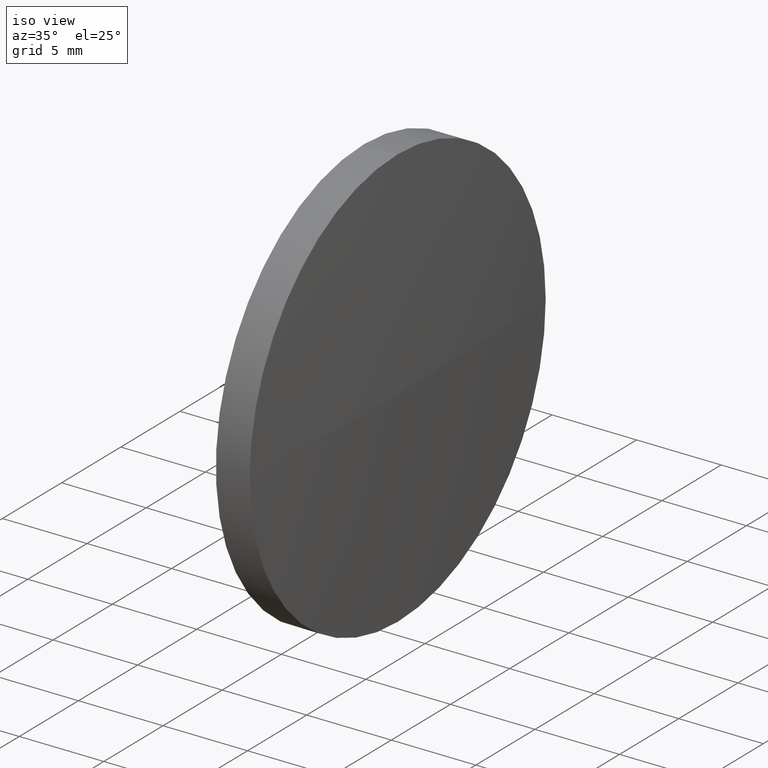
[diagram: clean part render]
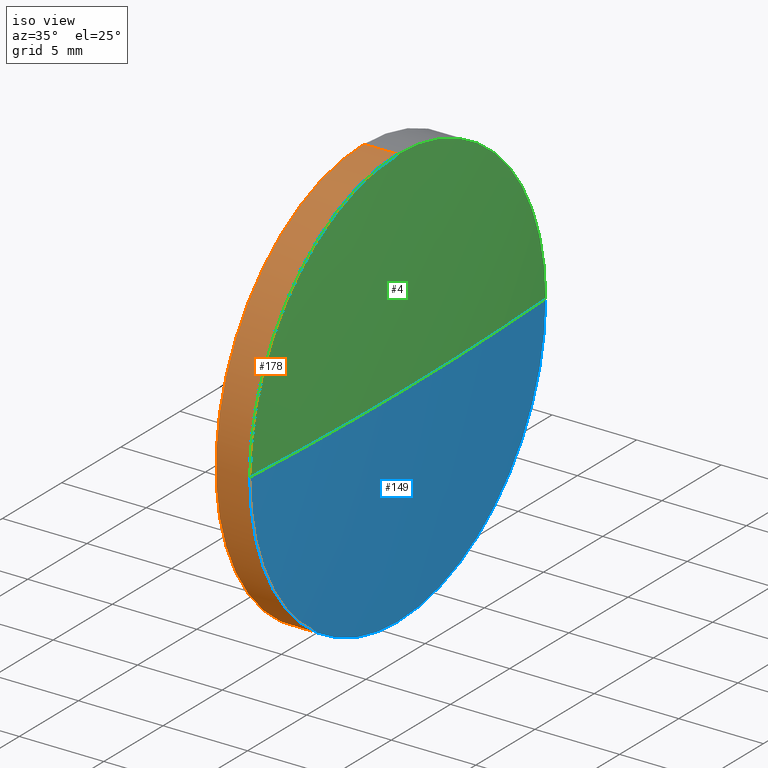
[diagram: same view with three faces highlighted in distinct colors, each labeled with its STEP entity id]
A machine part, iso view with three faces highlighted in distinct colors.
Their STEP definitions:

[orange] entity #178 — the highlighted cylindrical surface (partial cylindrical patch) has radius 12.5 mm, axis along (-1, -0, -0).
#8 = CARTESIAN_POINT ( 'NONE',  ( 498.1420614191210300, 132.8379031391614300, 0.0000000000000000000 ) ) ;
#10 = CARTESIAN_POINT ( 'NONE',  ( 498.1420614191210300, 145.3379031391612800, 12.50000000000001100 ) ) ;
#12 = VERTEX_POINT ( 'NONE', #8 ) ;
#16 = EDGE_CURVE ( 'NONE', #163, #184, #170, .T. ) ;
#22 = CARTESIAN_POINT ( 'NONE',  ( 496.1420614191210300, 145.3379031391612800, 0.0000000000000000000 ) ) ;
#24 = CARTESIAN_POINT ( 'NONE',  ( 496.1420614191210300, 145.3379031391612800, 12.50000000000001100 ) ) ;
#27 = FACE_OUTER_BOUND ( 'NONE', #156, .T. ) ;
#29 = EDGE_CURVE ( 'NONE', #35, #163, #166, .T. ) ;
#34 = CARTESIAN_POINT ( 'NONE',  ( 498.1420614191210300, 145.3379031391612800, 0.0000000000000000000 ) ) ;
#35 = VERTEX_POINT ( 'NONE', #141 ) ;
#39 = ORIENTED_EDGE ( 'NONE', *, *, #181, .T. ) ;
#41 = DIRECTION ( 'NONE',  ( 0.0000000000000000000, 0.0000000000000000000, 1.000000000000000000 ) ) ;
#42 = AXIS2_PLACEMENT_3D ( 'NONE', #177, #82, #145 ) ;
#49 = AXIS2_PLACEMENT_3D ( 'NONE', #22, #127, #53 ) ;
#53 = DIRECTION ( 'NONE',  ( 0.0000000000000000000, 0.0000000000000000000, 1.000000000000000000 ) ) ;
#55 = DIRECTION ( 'NONE',  ( 0.0000000000000000000, 0.0000000000000000000, 1.000000000000000000 ) ) ;
#56 = DIRECTION ( 'NONE',  ( -1.000000000000000000, -0.0000000000000000000, -0.0000000000000000000 ) ) ;
#60 = CIRCLE ( 'NONE', #91, 12.50000000000001100 ) ;
#62 = LINE ( 'NONE', #162, #132 ) ;
#65 = VERTEX_POINT ( 'NONE', #10 ) ;
#67 = CARTESIAN_POINT ( 'NONE',  ( 491.4000301772311400, 145.3379031391612800, 0.0000000000000000000 ) ) ;
#82 = DIRECTION ( 'NONE',  ( -1.000000000000000000, -0.0000000000000000000, -0.0000000000000000000 ) ) ;
#85 = DIRECTION ( 'NONE',  ( -1.000000000000000000, -0.0000000000000000000, -0.0000000000000000000 ) ) ;
#91 = AXIS2_PLACEMENT_3D ( 'NONE', #34, #56, #55 ) ;
#104 = CIRCLE ( 'NONE', #42, 12.50000000000001100 ) ;
#105 = CYLINDRICAL_SURFACE ( 'NONE', #154, 12.50000000000001100 ) ;
#109 = DIRECTION ( 'NONE',  ( -1.000000000000000000, -0.0000000000000000000, -0.0000000000000000000 ) ) ;
#111 = EDGE_CURVE ( 'NONE', #12, #65, #60, .T. ) ;
#118 = DIRECTION ( 'NONE',  ( -1.000000000000000000, -0.0000000000000000000, -0.0000000000000000000 ) ) ;
#119 = ORIENTED_EDGE ( 'NONE', *, *, #111, .T. ) ;
#125 = CARTESIAN_POINT ( 'NONE',  ( 491.4000301772311400, 145.3379031391612800, -12.50000000000001100 ) ) ;
#127 = DIRECTION ( 'NONE',  ( -1.000000000000000000, -0.0000000000000000000, -0.0000000000000000000 ) ) ;
#132 = VECTOR ( 'NONE', #118, 1000.000000000000000 ) ;
#141 = CARTESIAN_POINT ( 'NONE',  ( 498.1420614191210300, 145.3379031391612800, -12.50000000000001100 ) ) ;
#145 = DIRECTION ( 'NONE',  ( 0.0000000000000000000, 0.0000000000000000000, 1.000000000000000000 ) ) ;
#147 = VECTOR ( 'NONE', #109, 1000.000000000000000 ) ;
#150 = ORIENTED_EDGE ( 'NONE', *, *, #29, .F. ) ;
#154 = AXIS2_PLACEMENT_3D ( 'NONE', #67, #85, #41 ) ;
#156 = EDGE_LOOP ( 'NONE', ( #150, #168, #119, #39, #160 ) ) ;
#160 = ORIENTED_EDGE ( 'NONE', *, *, #16, .F. ) ;
#162 = CARTESIAN_POINT ( 'NONE',  ( 491.4000301772311400, 145.3379031391612800, 12.50000000000001100 ) ) ;
#163 = VERTEX_POINT ( 'NONE', #172 ) ;
#166 = LINE ( 'NONE', #125, #147 ) ;
#168 = ORIENTED_EDGE ( 'NONE', *, *, #173, .T. ) ;
#170 = CIRCLE ( 'NONE', #49, 12.50000000000001100 ) ;
#172 = CARTESIAN_POINT ( 'NONE',  ( 496.1420614191210300, 145.3379031391612800, -12.50000000000001100 ) ) ;
#173 = EDGE_CURVE ( 'NONE', #35, #12, #104, .T. ) ;
#177 = CARTESIAN_POINT ( 'NONE',  ( 498.1420614191210300, 145.3379031391612800, 0.0000000000000000000 ) ) ;
#178 = ADVANCED_FACE ( 'NONE', ( #27 ), #105, .T. ) ;
#181 = EDGE_CURVE ( 'NONE', #65, #184, #62, .T. ) ;
#184 = VERTEX_POINT ( 'NONE', #24 ) ;

[blue] entity #149 — the highlighted spherical surface has radius 205.782 mm.
#7 = ORIENTED_EDGE ( 'NONE', *, *, #93, .F. ) ;
#8 = CARTESIAN_POINT ( 'NONE',  ( 498.1420614191210300, 132.8379031391614300, 0.0000000000000000000 ) ) ;
#12 = VERTEX_POINT ( 'NONE', #8 ) ;
#14 = FACE_OUTER_BOUND ( 'NONE', #43, .T. ) ;
#15 = AXIS2_PLACEMENT_3D ( 'NONE', #171, #183, #21 ) ;
#21 = DIRECTION ( 'NONE',  ( 0.0000000000000000000, 0.0000000000000000000, 1.000000000000000000 ) ) ;
#28 = AXIS2_PLACEMENT_3D ( 'NONE', #97, #52, #37 ) ;
#30 = AXIS2_PLACEMENT_3D ( 'NONE', #155, #79, #137 ) ;
#35 = VERTEX_POINT ( 'NONE', #141 ) ;
#37 = DIRECTION ( 'NONE',  ( -1.000000000000000000, 0.0000000000000000000, 0.0000000000000000000 ) ) ;
#38 = CARTESIAN_POINT ( 'NONE',  ( 292.7399561559625500, 145.3379031391614500, 0.0000000000000000000 ) ) ;
#42 = AXIS2_PLACEMENT_3D ( 'NONE', #177, #82, #145 ) ;
#43 = EDGE_LOOP ( 'NONE', ( #121, #74, #76, #7 ) ) ;
#44 = SPHERICAL_SURFACE ( 'NONE', #69, 205.7821052631584800 ) ;
#52 = DIRECTION ( 'NONE',  ( 0.0000000000000000000, 0.0000000000000000000, -1.000000000000000000 ) ) ;
#54 = CIRCLE ( 'NONE', #15, 12.50000000000001100 ) ;
#66 = DIRECTION ( 'NONE',  ( 0.0000000000000000000, 0.0000000000000000000, 1.000000000000000000 ) ) ;
#69 = AXIS2_PLACEMENT_3D ( 'NONE', #38, #66, #140 ) ;
#74 = ORIENTED_EDGE ( 'NONE', *, *, #86, .T. ) ;
#76 = ORIENTED_EDGE ( 'NONE', *, *, #173, .F. ) ;
#79 = DIRECTION ( 'NONE',  ( 0.0000000000000000000, -1.224646799147353200E-016, 1.000000000000000000 ) ) ;
#82 = DIRECTION ( 'NONE',  ( -1.000000000000000000, -0.0000000000000000000, -0.0000000000000000000 ) ) ;
#86 = EDGE_CURVE ( 'NONE', #115, #12, #120, .T. ) ;
#93 = EDGE_CURVE ( 'NONE', #143, #35, #54, .T. ) ;
#97 = CARTESIAN_POINT ( 'NONE',  ( 292.7399561559625500, 145.3379031391614500, 0.0000000000000000000 ) ) ;
#104 = CIRCLE ( 'NONE', #42, 12.50000000000001100 ) ;
#115 = VERTEX_POINT ( 'NONE', #157 ) ;
#120 = CIRCLE ( 'NONE', #28, 205.7821052631584800 ) ;
#121 = ORIENTED_EDGE ( 'NONE', *, *, #164, .F. ) ;
#137 = DIRECTION ( 'NONE',  ( 0.0000000000000000000, -1.000000000000000000, -1.224646799147353200E-016 ) ) ;
#140 = DIRECTION ( 'NONE',  ( 0.0000000000000000000, -1.000000000000000000, 0.0000000000000000000 ) ) ;
#141 = CARTESIAN_POINT ( 'NONE',  ( 498.1420614191210300, 145.3379031391612800, -12.50000000000001100 ) ) ;
#143 = VERTEX_POINT ( 'NONE', #169 ) ;
#145 = DIRECTION ( 'NONE',  ( 0.0000000000000000000, 0.0000000000000000000, 1.000000000000000000 ) ) ;
#149 = ADVANCED_FACE ( 'NONE', ( #14 ), #44, .T. ) ;
#155 = CARTESIAN_POINT ( 'NONE',  ( 292.7399561559625500, 145.3379031391614500, 0.0000000000000000000 ) ) ;
#157 = CARTESIAN_POINT ( 'NONE',  ( 498.5220614191210300, 145.3379031391614500, 0.0000000000000000000 ) ) ;
#164 = EDGE_CURVE ( 'NONE', #115, #143, #182, .T. ) ;
#169 = CARTESIAN_POINT ( 'NONE',  ( 498.1420614191210300, 157.8379031391612800, 1.530808498934174600E-015 ) ) ;
#171 = CARTESIAN_POINT ( 'NONE',  ( 498.1420614191210300, 145.3379031391612800, 0.0000000000000000000 ) ) ;
#173 = EDGE_CURVE ( 'NONE', #35, #12, #104, .T. ) ;
#177 = CARTESIAN_POINT ( 'NONE',  ( 498.1420614191210300, 145.3379031391612800, 0.0000000000000000000 ) ) ;
#182 = CIRCLE ( 'NONE', #30, 205.7821052631584800 ) ;
#183 = DIRECTION ( 'NONE',  ( -1.000000000000000000, -0.0000000000000000000, -0.0000000000000000000 ) ) ;

[green] entity #4 — the highlighted spherical surface has radius 205.782 mm.
#4 = ADVANCED_FACE ( 'NONE', ( #18 ), #179, .T. ) ;
#8 = CARTESIAN_POINT ( 'NONE',  ( 498.1420614191210300, 132.8379031391614300, 0.0000000000000000000 ) ) ;
#9 = ORIENTED_EDGE ( 'NONE', *, *, #164, .T. ) ;
#10 = CARTESIAN_POINT ( 'NONE',  ( 498.1420614191210300, 145.3379031391612800, 12.50000000000001100 ) ) ;
#12 = VERTEX_POINT ( 'NONE', #8 ) ;
#18 = FACE_OUTER_BOUND ( 'NONE', #165, .T. ) ;
#20 = DIRECTION ( 'NONE',  ( -1.000000000000000000, -0.0000000000000000000, -0.0000000000000000000 ) ) ;
#28 = AXIS2_PLACEMENT_3D ( 'NONE', #97, #52, #37 ) ;
#30 = AXIS2_PLACEMENT_3D ( 'NONE', #155, #79, #137 ) ;
#33 = CARTESIAN_POINT ( 'NONE',  ( 292.7399561559625500, 145.3379031391614500, 0.0000000000000000000 ) ) ;
#34 = CARTESIAN_POINT ( 'NONE',  ( 498.1420614191210300, 145.3379031391612800, 0.0000000000000000000 ) ) ;
#37 = DIRECTION ( 'NONE',  ( -1.000000000000000000, 0.0000000000000000000, 0.0000000000000000000 ) ) ;
#51 = AXIS2_PLACEMENT_3D ( 'NONE', #112, #20, #110 ) ;
#52 = DIRECTION ( 'NONE',  ( 0.0000000000000000000, 0.0000000000000000000, -1.000000000000000000 ) ) ;
#55 = DIRECTION ( 'NONE',  ( 0.0000000000000000000, 0.0000000000000000000, 1.000000000000000000 ) ) ;
#56 = DIRECTION ( 'NONE',  ( -1.000000000000000000, -0.0000000000000000000, -0.0000000000000000000 ) ) ;
#59 = AXIS2_PLACEMENT_3D ( 'NONE', #33, #106, #63 ) ;
#60 = CIRCLE ( 'NONE', #91, 12.50000000000001100 ) ;
#63 = DIRECTION ( 'NONE',  ( 0.0000000000000000000, -1.000000000000000000, 0.0000000000000000000 ) ) ;
#65 = VERTEX_POINT ( 'NONE', #10 ) ;
#70 = ORIENTED_EDGE ( 'NONE', *, *, #86, .F. ) ;
#77 = CIRCLE ( 'NONE', #51, 12.50000000000001100 ) ;
#79 = DIRECTION ( 'NONE',  ( 0.0000000000000000000, -1.224646799147353200E-016, 1.000000000000000000 ) ) ;
#86 = EDGE_CURVE ( 'NONE', #115, #12, #120, .T. ) ;
#88 = EDGE_CURVE ( 'NONE', #65, #143, #77, .T. ) ;
#91 = AXIS2_PLACEMENT_3D ( 'NONE', #34, #56, #55 ) ;
#97 = CARTESIAN_POINT ( 'NONE',  ( 292.7399561559625500, 145.3379031391614500, 0.0000000000000000000 ) ) ;
#106 = DIRECTION ( 'NONE',  ( 0.0000000000000000000, 0.0000000000000000000, 1.000000000000000000 ) ) ;
#110 = DIRECTION ( 'NONE',  ( 0.0000000000000000000, 0.0000000000000000000, 1.000000000000000000 ) ) ;
#111 = EDGE_CURVE ( 'NONE', #12, #65, #60, .T. ) ;
#112 = CARTESIAN_POINT ( 'NONE',  ( 498.1420614191210300, 145.3379031391612800, 0.0000000000000000000 ) ) ;
#115 = VERTEX_POINT ( 'NONE', #157 ) ;
#120 = CIRCLE ( 'NONE', #28, 205.7821052631584800 ) ;
#126 = ORIENTED_EDGE ( 'NONE', *, *, #88, .F. ) ;
#137 = DIRECTION ( 'NONE',  ( 0.0000000000000000000, -1.000000000000000000, -1.224646799147353200E-016 ) ) ;
#143 = VERTEX_POINT ( 'NONE', #169 ) ;
#153 = ORIENTED_EDGE ( 'NONE', *, *, #111, .F. ) ;
#155 = CARTESIAN_POINT ( 'NONE',  ( 292.7399561559625500, 145.3379031391614500, 0.0000000000000000000 ) ) ;
#157 = CARTESIAN_POINT ( 'NONE',  ( 498.5220614191210300, 145.3379031391614500, 0.0000000000000000000 ) ) ;
#164 = EDGE_CURVE ( 'NONE', #115, #143, #182, .T. ) ;
#165 = EDGE_LOOP ( 'NONE', ( #70, #9, #126, #153 ) ) ;
#169 = CARTESIAN_POINT ( 'NONE',  ( 498.1420614191210300, 157.8379031391612800, 1.530808498934174600E-015 ) ) ;
#179 = SPHERICAL_SURFACE ( 'NONE', #59, 205.7821052631584800 ) ;
#182 = CIRCLE ( 'NONE', #30, 205.7821052631584800 ) ;